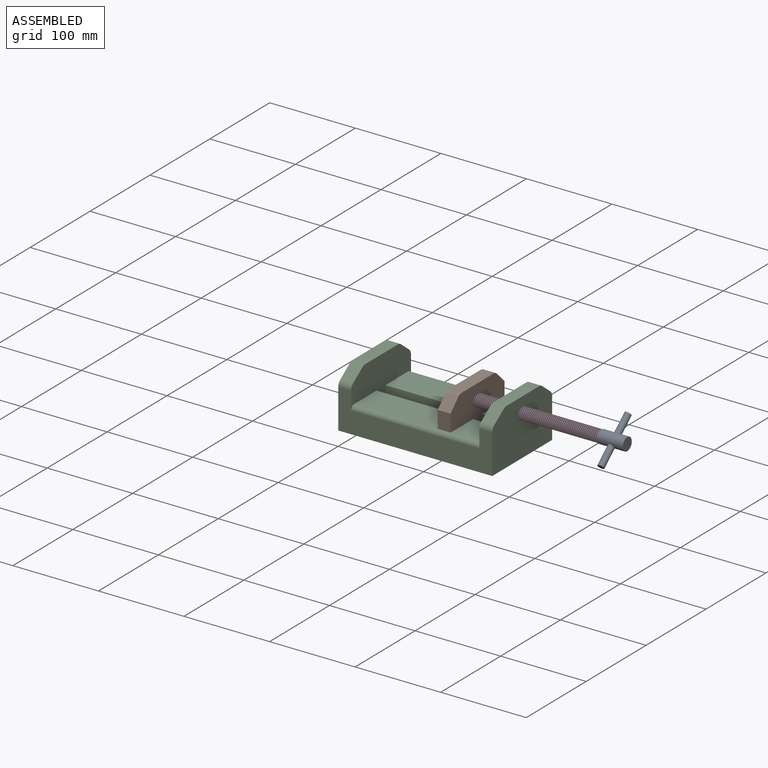
[diagram: assembled view]
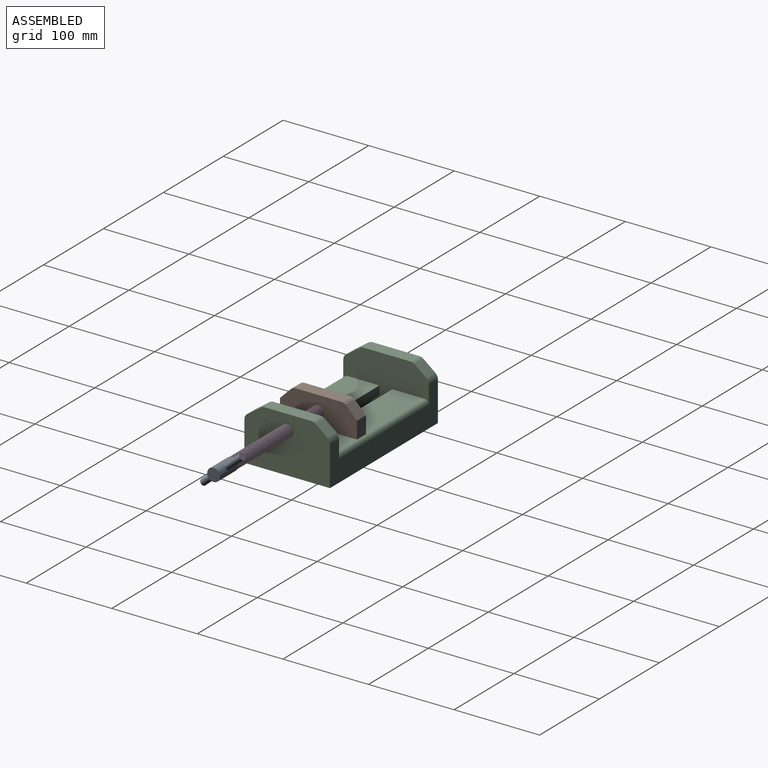
[diagram: assembled view, second angle]
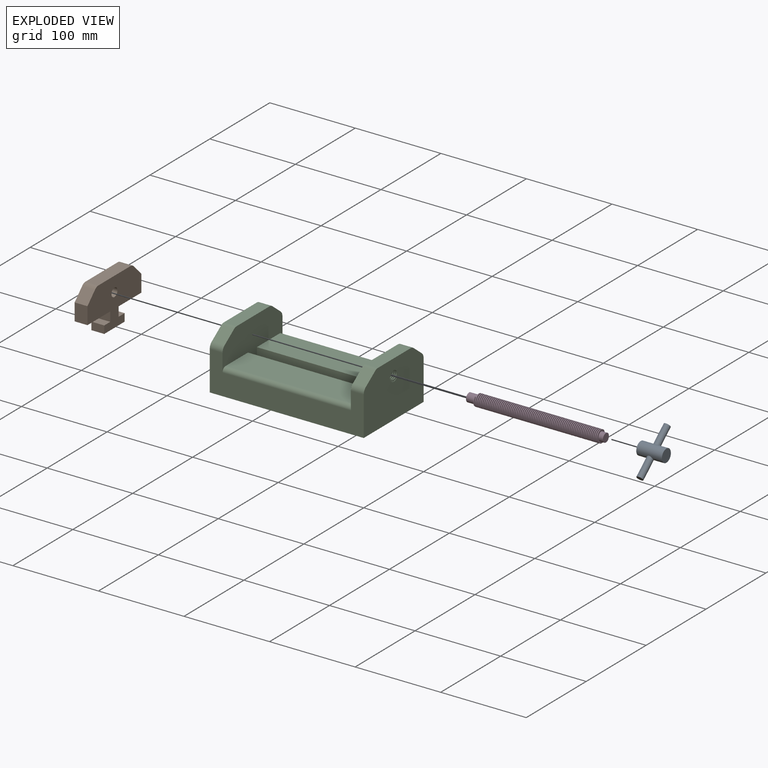
[diagram: exploded view]
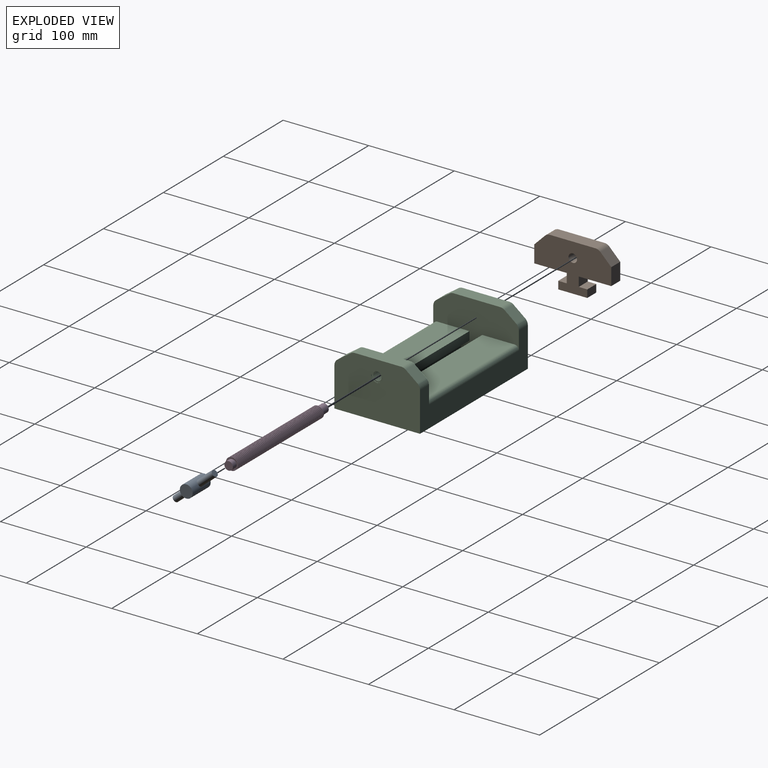
[diagram: exploded view, second angle]
ASSEMBLY  parts=4 mates=3
PART A: 9 faces, bbox 30x60x15 mm
  f0: cylinder r=7.5mm len=30mm, axis (-1,0,0), area 1322.2mm2, adj f1,f2,f6,f7
  f1: plane 15x15mm, normal (1,0,0), area 176.7mm2, adj f0
  f2: plane 15x15mm, normal (-1,0,0), area 98.2mm2, adj f0,f3
  f3: cylinder r=5mm len=10mm, axis (-1,0,0), area 157.1mm2, adj f2,f4
  f4: cone r=0mm half-angle=59deg, axis (-1,0,0), area 91.6mm2, adj f3
  f5: plane 7.5x7.5mm, normal (0,1,0), area 44.2mm2, adj f6
  f6: cylinder r=3.75mm len=23.51mm, axis (0,1,0), area 541.8mm2, adj f0,f5
  f7: cylinder r=3.75mm len=23.51mm, axis (0,1,0), area 541.8mm2, adj f0,f8
  f8: plane 7.5x7.5mm, normal (0,-1,0), area 44.2mm2, adj f7
PART B: 20 faces, bbox 15x90x55 mm
  f0: plane 15x11mm, normal (0,1,0), area 165mm2, adj f1,f15,f16,f17
  f1: plane 38x15mm, normal (0,0,-1), area 570mm2, adj f0,f2,f16,f17
  f2: plane 20x15mm, normal (0,1,0), area 300mm2, adj f1,f3,f16,f17
  f3: plane 15x12.66mm, normal (0,0.71,0.71), area 268.5mm2, adj f2,f4,f16,f17
  f4: cylinder r=8mm len=15mm, axis (-1,0,0), area 94.2mm2, adj f3,f5,f16,f17
  f5: plane 53.37x15mm, normal (0,0,1), area 800.6mm2, adj f4,f6,f16,f17
  f6: cylinder r=8mm len=15mm, axis (-1,0,0), area 94.2mm2, adj f5,f7,f16,f17
  f7: plane 15x12.66mm, normal (0,-0.71,0.71), area 268.5mm2, adj f6,f8,f16,f17
  f8: plane 20x15mm, normal (0,-1,0), area 300mm2, adj f7,f9,f16,f17
  f9: plane 38x15mm, normal (0,0,-1), area 570mm2, adj f8,f10,f16,f17
  f10: plane 15x11mm, normal (0,-1,0), area 165mm2, adj f9,f11,f16,f17
  f11: plane 15x10mm, normal (0,0,1), area 150mm2, adj f10,f12,f16,f17
  f12: plane 15x9mm, normal (0,-1,0), area 135mm2, adj f11,f13,f16,f17
  f13: plane 34x15mm, normal (0,0,-1), area 510mm2, adj f12,f14,f16,f17
  f14: plane 15x9mm, normal (0,1,0), area 135mm2, adj f13,f15,f16,f17
  f15: plane 15x10mm, normal (0,0,1), area 150mm2, adj f0,f14,f16,f17
  f16: plane 90x55mm, normal (1,0,0), area 3303.7mm2, adj f0,f1,f2,f3,f4,f5,f6,f7
  f17: plane 90x55mm, normal (-1,0,0), area 3382.2mm2, adj f0,f1,f2,f3,f4,f5,f6,f7
  f18: cylinder r=5mm len=10mm, axis (1,0,0), area 314.2mm2, adj f16,f19
  f19: cone r=0mm half-angle=59deg, axis (1,0,0), area 91.6mm2, adj f18
PART C: 44 faces, bbox 180.2x100x65 mm
  f0: plane 100x65mm, normal (1,0,0), area 6078.3mm2, adj f8,f15,f16,f17,f32,f33,f34,f35
  f1: cylinder r=5mm len=10mm, axis (1,0,0), area 47.1mm2, adj f2,f39,f40,f43
  f2: cylinder r=5mm len=10mm, axis (1,0,0), area 31.4mm2, adj f1,f3,f41,f43
  f3: cylinder r=5mm len=10mm, axis (1,0,0), area 31.4mm2, adj f2,f4,f41,f43
  f4: cylinder r=5mm len=10mm, axis (1,0,0), area 31.4mm2, adj f3,f5,f41,f43
  f5: cylinder r=5mm len=10mm, axis (1,0,0), area 31.4mm2, adj f4,f6,f41,f43
  f6: cylinder r=5mm len=10mm, axis (1,0,0), area 31.5mm2, adj f5,f7,f41,f43
  f7: cylinder r=5mm len=10mm, axis (1,0,0), area 31.4mm2, adj f6,f8,f41,f43
  f8: cylinder r=5mm len=10mm, axis (1,0,0), area 15.7mm2, adj f0,f7,f41,f43
  f9: plane 150x35mm, normal (0,0,1), area 5250mm2, adj f10,f22,f31,f39
  f10: plane 150x10mm, normal (0,1,0), area 1500mm2, adj f9,f11,f31,f39
  f11: plane 150x10mm, normal (0,0,-1), area 1500mm2, adj f10,f12,f31,f39
  f12: plane 150x10mm, normal (0,1,0), area 1500mm2, adj f11,f13,f31,f39
  f13: plane 150x37.27mm, normal (0,0,1), area 5590.4mm2, adj f12,f14,f31,f39
  f14: cylinder r=5mm len=150mm, axis (-1,0,0), area 1178.1mm2, adj f13,f15,f31,f39
  f15: plane 180x45.92mm, normal (0,-1,0), area 5127.6mm2, adj f0,f14,f16,f23,f30,f31,f32,f39
  f16: plane 180x100mm, normal (0,0,-1), area 18000mm2, adj f0,f15,f17,f30
  f17: plane 180x46.14mm, normal (0,1,0), area 5134.2mm2, adj f0,f16,f18,f29,f30,f31,f38,f39
  f18: cylinder r=5mm len=150mm, axis (-1,0,0), area 1178.1mm2, adj f17,f19,f31,f39
  f19: plane 150x37.73mm, normal (0,0,1), area 5659.6mm2, adj f18,f20,f31,f39
  f20: plane 150x10mm, normal (0,-1,0), area 1500mm2, adj f19,f21,f31,f39
  f21: plane 150x10mm, normal (0,0,-1), area 1500mm2, adj f20,f22,f31,f39
  f22: plane 150x10mm, normal (0,-1,0), area 1500mm2, adj f9,f21,f31,f39
  f23: cylinder r=8mm len=15mm, axis (1,0,0), area 114.6mm2, adj f15,f24,f30,f31
  f24: plane 15.67x15mm, normal (0,-0.58,0.82), area 287.8mm2, adj f23,f25,f30,f31
  f25: cylinder r=8mm len=15mm, axis (1,0,0), area 73.9mm2, adj f24,f26,f30,f31
  f26: plane 54.67x15mm, normal (0,0,1), area 820mm2, adj f25,f27,f30,f31
  f27: cylinder r=8mm len=15mm, axis (1,0,0), area 80.6mm2, adj f26,f28,f30,f31
  f28: plane 15x13.67mm, normal (0,0.62,0.78), area 261.9mm2, adj f27,f29,f30,f31
  f29: cylinder r=8mm len=15mm, axis (1,0,0), area 107.9mm2, adj f17,f28,f30,f31
  f30: plane 100x65mm, normal (-1,0,0), area 6194.5mm2, adj f15,f16,f17,f23,f24,f25,f26,f27
  f31: plane 100x55mm, normal (1,0,0), area 3705.2mm2, adj f9,f10,f11,f12,f13,f14,f15,f17
  f32: cylinder r=8mm len=15mm, axis (-1,0,0), area 114.6mm2, adj f0,f15,f33,f39
  f33: plane 15.67x15mm, normal (0,-0.58,0.82), area 287.8mm2, adj f0,f32,f34,f39
  f34: cylinder r=8mm len=15mm, axis (-1,0,0), area 73.9mm2, adj f0,f33,f35,f39
  f35: plane 54.67x15mm, normal (0,0,1), area 820mm2, adj f0,f34,f36,f39
  f36: cylinder r=8mm len=15mm, axis (-1,0,0), area 80.6mm2, adj f0,f35,f37,f39
  f37: plane 15x13.67mm, normal (0,0.62,0.78), area 261.9mm2, adj f0,f36,f38,f39
  f38: cylinder r=8mm len=15mm, axis (-1,0,0), area 107.9mm2, adj f0,f17,f37,f39
  f39: plane 100x55mm, normal (-1,0,0), area 3626.7mm2, adj f1,f9,f10,f11,f12,f13,f14,f15
  f40: plane 2x1mm, normal (0,1,0), area 2mm2, adj f1,f41,f42,f43
  f41: bspline ~16.17x14mm, area 510.1mm2, adj f0,f2,f3,f4,f5,f6,f7,f8
  f42: cylinder r=7mm len=14.5mm, axis (1,0,0), area 303.7mm2, adj f0,f40,f41,f43
  f43: bspline ~16.17x14.67mm, area 547.4mm2, adj f0,f1,f2,f3,f4,f5,f6,f7
PART D: 80 faces, bbox 160x16.2x14 mm
  f0: cylinder r=5mm len=11.5mm, axis (-1,0,0), area 329.9mm2, adj f1,f73,f75,f78
  f1: cylinder r=5mm len=10mm, axis (-1,0,0), area 31.4mm2, adj f0,f2,f75,f77
  f2: cylinder r=5mm len=10mm, axis (-1,0,0), area 31.4mm2, adj f1,f3,f75,f77
  f3: cylinder r=5mm len=10mm, axis (-1,0,0), area 31.4mm2, adj f2,f4,f75,f77
  f4: cylinder r=5mm len=10mm, axis (-1,0,0), area 31.4mm2, adj f3,f5,f75,f77
  f5: cylinder r=5mm len=10mm, axis (-1,0,0), area 31.4mm2, adj f4,f6,f75,f77
  f6: cylinder r=5mm len=10mm, axis (-1,0,0), area 31.4mm2, adj f5,f7,f75,f77
  f7: cylinder r=5mm len=10mm, axis (-1,0,0), area 31.4mm2, adj f6,f8,f75,f77
  f8: cylinder r=5mm len=10mm, axis (-1,0,0), area 31.4mm2, adj f7,f9,f75,f77
  f9: cylinder r=5mm len=10mm, axis (-1,0,0), area 31.4mm2, adj f8,f10,f75,f77
  f10: cylinder r=5mm len=10mm, axis (-1,0,0), area 31.4mm2, adj f9,f11,f75,f77
  f11: cylinder r=5mm len=10mm, axis (-1,0,0), area 31.4mm2, adj f10,f12,f75,f77
  f12: cylinder r=5mm len=10mm, axis (-1,0,0), area 31.4mm2, adj f11,f13,f75,f77
  f13: cylinder r=5mm len=10mm, axis (-1,0,0), area 31.4mm2, adj f12,f14,f75,f77
  f14: cylinder r=5mm len=10mm, axis (-1,0,0), area 31.4mm2, adj f13,f15,f75,f77
  f15: cylinder r=5mm len=10mm, axis (-1,0,0), area 31.4mm2, adj f14,f16,f75,f77
  f16: cylinder r=5mm len=10mm, axis (-1,0,0), area 31.4mm2, adj f15,f17,f75,f77
  f17: cylinder r=5mm len=10mm, axis (-1,0,0), area 31.4mm2, adj f16,f18,f75,f77
  f18: cylinder r=5mm len=10mm, axis (-1,0,0), area 31.4mm2, adj f17,f19,f75,f77
  f19: cylinder r=5mm len=10mm, axis (-1,0,0), area 31.4mm2, adj f18,f20,f75,f77
  f20: cylinder r=5mm len=10mm, axis (-1,0,0), area 31.4mm2, adj f19,f21,f75,f77
  f21: cylinder r=5mm len=10mm, axis (-1,0,0), area 31.4mm2, adj f20,f22,f75,f77
  f22: cylinder r=5mm len=10mm, axis (-1,0,0), area 31.4mm2, adj f21,f23,f75,f77
  f23: cylinder r=5mm len=10mm, axis (-1,0,0), area 31.4mm2, adj f22,f24,f75,f77
  f24: cylinder r=5mm len=10mm, axis (-1,0,0), area 31.4mm2, adj f23,f25,f75,f77
  f25: cylinder r=5mm len=10mm, axis (-1,0,0), area 31.4mm2, adj f24,f26,f75,f77
  f26: cylinder r=5mm len=10mm, axis (-1,0,0), area 31.4mm2, adj f25,f27,f75,f77
  f27: cylinder r=5mm len=10mm, axis (-1,0,0), area 31.4mm2, adj f26,f28,f75,f77
  f28: cylinder r=5mm len=10mm, axis (-1,0,0), area 31.4mm2, adj f27,f29,f75,f77
  f29: cylinder r=5mm len=10mm, axis (-1,0,0), area 31.4mm2, adj f28,f30,f75,f77
  f30: cylinder r=5mm len=10mm, axis (-1,0,0), area 31.4mm2, adj f29,f31,f75,f77
  f31: cylinder r=5mm len=10mm, axis (-1,0,0), area 31.4mm2, adj f30,f32,f75,f77
  f32: cylinder r=5mm len=10mm, axis (-1,0,0), area 31.4mm2, adj f31,f33,f75,f77
  f33: cylinder r=5mm len=10mm, axis (-1,0,0), area 31.4mm2, adj f32,f34,f75,f77
  f34: cylinder r=5mm len=10mm, axis (-1,0,0), area 31.4mm2, adj f33,f35,f75,f77
  f35: cylinder r=5mm len=10mm, axis (-1,0,0), area 31.4mm2, adj f34,f36,f75,f77
  f36: cylinder r=5mm len=10mm, axis (-1,0,0), area 31.4mm2, adj f35,f37,f75,f77
  f37: cylinder r=5mm len=10mm, axis (-1,0,0), area 31.4mm2, adj f36,f38,f75,f77
  f38: cylinder r=5mm len=10mm, axis (-1,0,0), area 31.4mm2, adj f37,f39,f75,f77
  f39: cylinder r=5mm len=10mm, axis (-1,0,0), area 31.4mm2, adj f38,f40,f75,f77
  f40: cylinder r=5mm len=10mm, axis (-1,0,0), area 31.4mm2, adj f39,f41,f75,f77
  f41: cylinder r=5mm len=10mm, axis (-1,0,0), area 31.4mm2, adj f40,f42,f75,f77
  f42: cylinder r=5mm len=10mm, axis (-1,0,0), area 31.4mm2, adj f41,f43,f75,f77
  f43: cylinder r=5mm len=10mm, axis (-1,0,0), area 31.4mm2, adj f42,f44,f75,f77
  f44: cylinder r=5mm len=10mm, axis (-1,0,0), area 31.4mm2, adj f43,f45,f75,f77
  f45: cylinder r=5mm len=10mm, axis (-1,0,0), area 31.4mm2, adj f44,f46,f75,f77
  f46: cylinder r=5mm len=10mm, axis (-1,0,0), area 31.4mm2, adj f45,f47,f75,f77
  f47: cylinder r=5mm len=10mm, axis (-1,0,0), area 31.4mm2, adj f46,f48,f75,f77
  f48: cylinder r=5mm len=10mm, axis (-1,0,0), area 31.4mm2, adj f47,f49,f75,f77
  f49: cylinder r=5mm len=10mm, axis (-1,0,0), area 31.4mm2, adj f48,f50,f75,f77
  f50: cylinder r=5mm len=10mm, axis (-1,0,0), area 31.4mm2, adj f49,f51,f75,f77
  f51: cylinder r=5mm len=10mm, axis (-1,0,0), area 31.4mm2, adj f50,f52,f75,f77
  f52: cylinder r=5mm len=10mm, axis (-1,0,0), area 31.4mm2, adj f51,f53,f75,f77
  f53: cylinder r=5mm len=10mm, axis (-1,0,0), area 31.4mm2, adj f52,f54,f75,f77
  f54: cylinder r=5mm len=10mm, axis (-1,0,0), area 31.4mm2, adj f53,f55,f75,f77
  f55: cylinder r=5mm len=10mm, axis (-1,0,0), area 31.4mm2, adj f54,f56,f75,f77
  f56: cylinder r=5mm len=10mm, axis (-1,0,0), area 31.4mm2, adj f55,f57,f75,f77
  f57: cylinder r=5mm len=10mm, axis (-1,0,0), area 31.4mm2, adj f56,f58,f75,f77
  f58: cylinder r=5mm len=10mm, axis (-1,0,0), area 31.4mm2, adj f57,f59,f75,f77
  f59: cylinder r=5mm len=10mm, axis (-1,0,0), area 31.4mm2, adj f58,f60,f75,f77
  f60: cylinder r=5mm len=10mm, axis (-1,0,0), area 31.4mm2, adj f59,f61,f75,f77
  f61: cylinder r=5mm len=10mm, axis (-1,0,0), area 31.4mm2, adj f60,f62,f75,f77
  f62: cylinder r=5mm len=10mm, axis (-1,0,0), area 31.4mm2, adj f61,f63,f75,f77
  f63: cylinder r=5mm len=10mm, axis (-1,0,0), area 31.4mm2, adj f62,f64,f75,f77
  f64: cylinder r=5mm len=10mm, axis (-1,0,0), area 31.4mm2, adj f63,f65,f75,f77
  f65: cylinder r=5mm len=10mm, axis (-1,0,0), area 31.4mm2, adj f64,f66,f75,f77
  f66: cylinder r=5mm len=10mm, axis (-1,0,0), area 31.4mm2, adj f65,f67,f75,f77
  f67: cylinder r=5mm len=10mm, axis (-1,0,0), area 31.4mm2, adj f66,f68,f75,f77
  f68: cylinder r=5mm len=10mm, axis (-1,0,0), area 31.4mm2, adj f67,f69,f75,f77
  f69: cylinder r=5mm len=10mm, axis (-1,0,0), area 31.4mm2, adj f68,f70,f75,f77
  f70: cylinder r=5mm len=10mm, axis (-1,0,0), area 31.4mm2, adj f69,f71,f75,f77
  f71: cylinder r=5mm len=10mm, axis (-1,0,0), area 31.4mm2, adj f70,f72,f75,f77
  f72: cylinder r=5mm len=10mm, axis (-1,0,0), area 188.5mm2, adj f71,f74,f75,f77,f79
  f73: plane 2x1mm, normal (0,1,0), area 2mm2, adj f0,f75,f76,f77
  f74: plane 2x1mm, normal (0,1,0), area 2mm2, adj f72,f75,f76,f77
  f75: bspline ~145x16.17mm, area 5491mm2, adj f0,f1,f2,f3,f4,f5,f6,f7
  f76: cylinder r=7mm len=146mm, axis (1,0,0), area 3188.7mm2, adj f73,f74,f75,f77
  f77: bspline ~145x16.17mm, area 5474mm2, adj f1,f2,f3,f4,f5,f6,f7,f8
  f78: plane 10x10mm, normal (-1,0,0), area 78.5mm2, adj f0
  f79: plane 10x10mm, normal (1,0,0), area 78.5mm2, adj f72
PLACE A rot(axis=(-1,0,0),139.5deg) t=(158.38,-29.09,-7.48)mm
PLACE B t=(-1.62,-29.09,-44.98)mm
PLACE C t=(-99.44,-29.09,-54.98)mm fixed
PLACE D rot(axis=(1,0,0),40.5deg) t=(3.38,-29.09,-7.48)mm
MATE cylindrical D.f0 <-> C.f1  axis (-1,0,0) through (3.38,-29.09,-7.48)mm
MATE revolute D.f0 <-> B.f18  axis (-1,0,0) through (3.38,-29.09,-7.48)mm
MATE fastened D.f0 <-> A.f0  axis (1,0,0) through (163.38,-29.09,-7.48)mm
